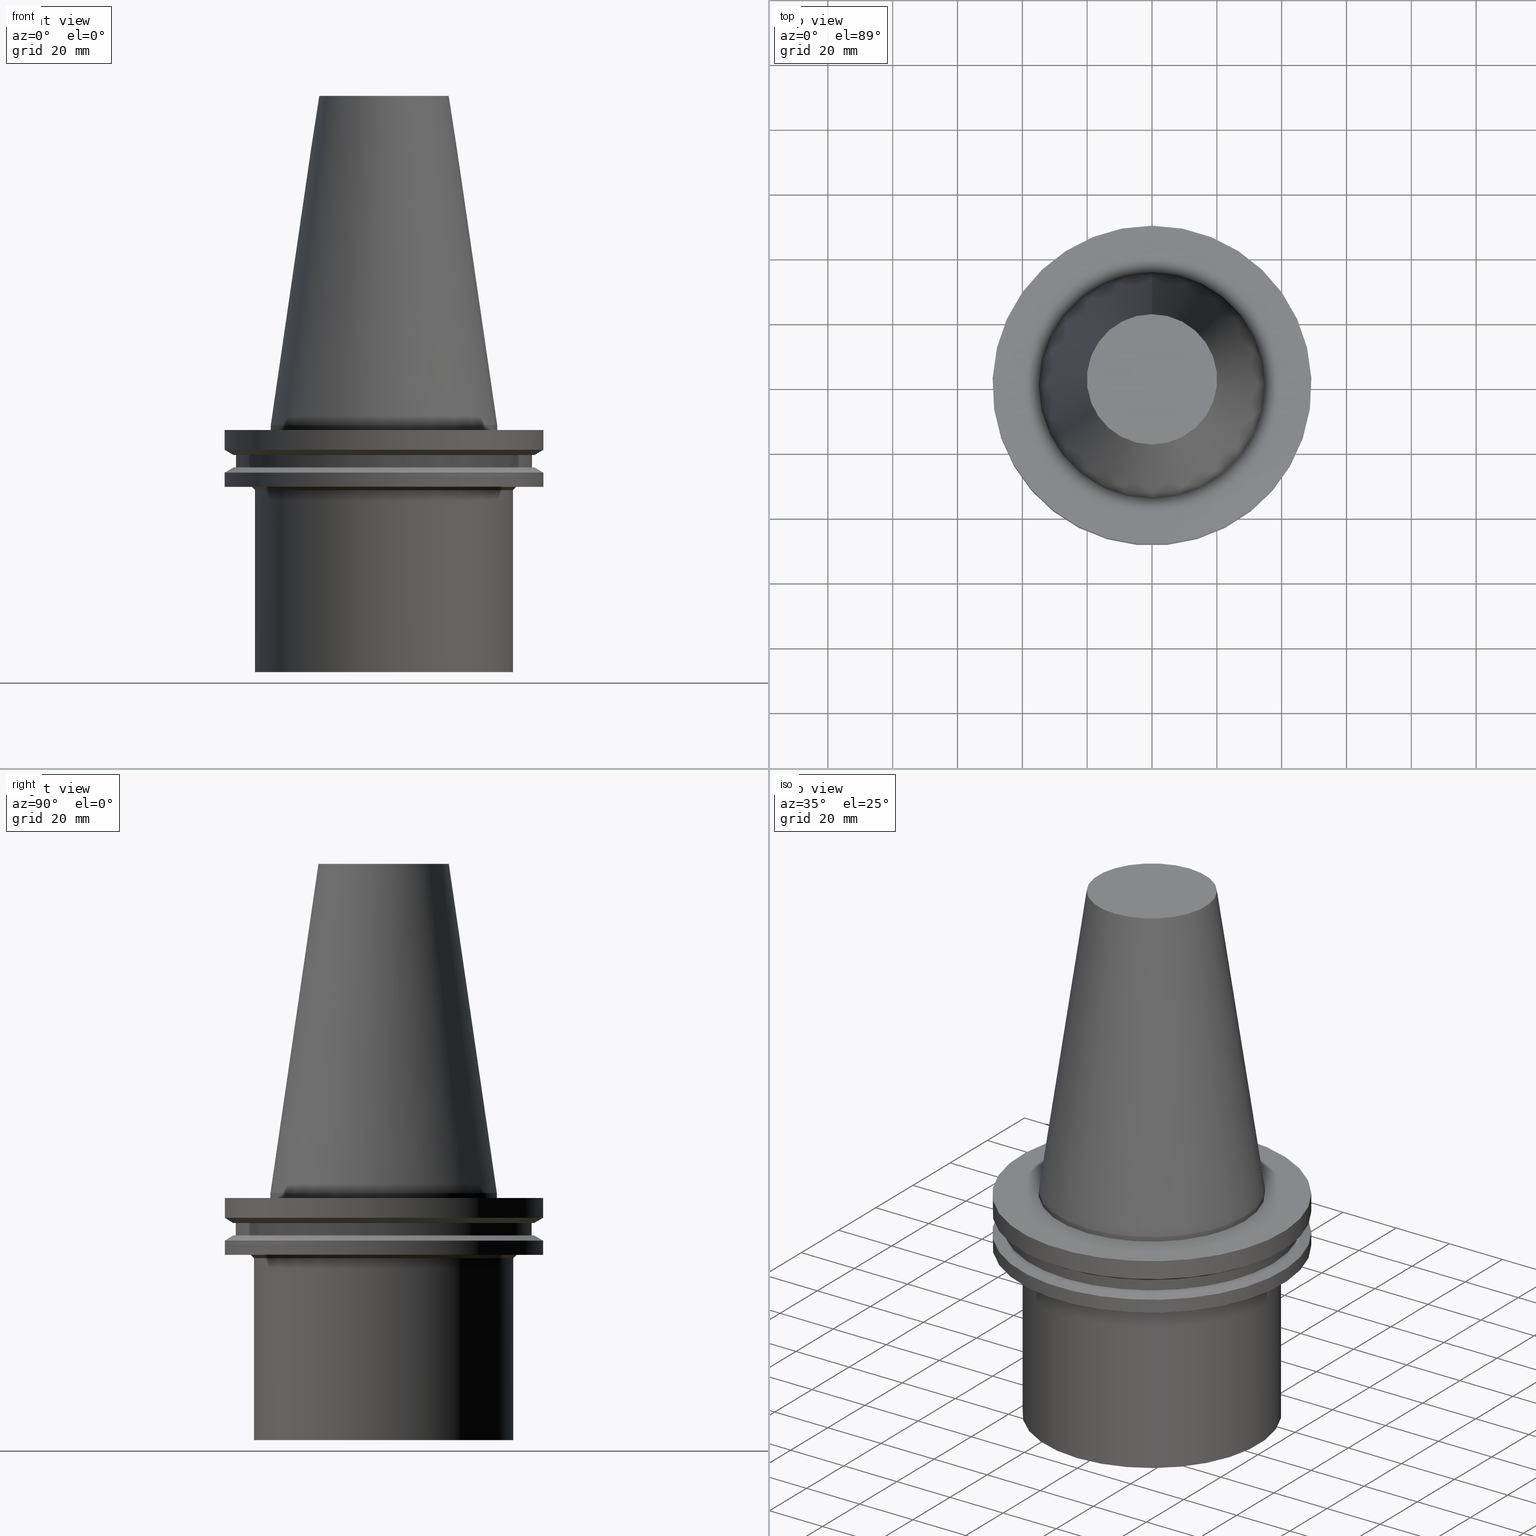
[diagram: canonical four-view strip — front | top / right | iso, engineering-drawing reading convention]
A machine part, canonical four-view strip (front | top / right | iso — engineering-drawing reading convention). The complete STEP part file that produces these views, byte-faithful:
ISO-10303-21;
HEADER;
FILE_DESCRIPTION((''),'1');
FILE_NAME('V:/90_\X2\53D65F9730C730FC30BF\X0\/00_\X2\6DE18DEF30C730FC30BF\X0\/ALL/BCV-BKUS\X2\FF76FF80FF9BFF78FF9E752852A05DE556F3\X0\201801/BCV50Y-CAPTO/BCV50Y-C8-3.stp','2018-02-01T01:59:57',(''),(''),'Spatial Interop R21 SP3','Kubotek KeyCreator 2011 V10.0.2 (22737)',' ');
FILE_SCHEMA(('automotive_design'));
ENDSEC;
DATA;
#1=MECHANICAL_DESIGN_GEOMETRIC_PRESENTATION_REPRESENTATION(' ',(#10,#11,#12,#13,#14,#15,#16,#17,#18,#19,#20,#21,#22,#23,#24,#25,#26,#27,#28,#29,#30,#31,#32,#33,#34,#35,#36,#37,#38,#39),#6);
#2=PRODUCT_DEFINITION_CONTEXT('',#40,'design');
#3=APPLICATION_PROTOCOL_DEFINITION('INTERNATIONAL STANDARD','automotive_design',1994,#40);
#4=PRODUCT_CATEGORY_RELATIONSHIP('NONE','NONE',#41,#42);
#5=SHAPE_DEFINITION_REPRESENTATION(#43,#44);
#6= (GEOMETRIC_REPRESENTATION_CONTEXT(3)GLOBAL_UNCERTAINTY_ASSIGNED_CONTEXT((#47))GLOBAL_UNIT_ASSIGNED_CONTEXT((#49,#50,#51))REPRESENTATION_CONTEXT('NONE','WORKSPACE'));
#10=STYLED_ITEM('',(#53),#54);
#11=STYLED_ITEM('',(#55,#56),#57);
#12=STYLED_ITEM('',(#58,#59),#60);
#13=STYLED_ITEM('',(#61,#62),#63);
#14=STYLED_ITEM('',(#64,#65),#66);
#15=STYLED_ITEM('',(#67,#68),#69);
#16=STYLED_ITEM('',(#70),#71);
#17=STYLED_ITEM('',(#72,#73),#74);
#18=STYLED_ITEM('',(#75),#76);
#19=STYLED_ITEM('',(#77),#78);
#20=STYLED_ITEM('',(#79),#80);
#21=STYLED_ITEM('',(#81),#82);
#22=STYLED_ITEM('',(#83,#84),#85);
#23=STYLED_ITEM('',(#86,#87),#88);
#24=STYLED_ITEM('',(#89),#90);
#25=STYLED_ITEM('',(#91,#92),#93);
#26=STYLED_ITEM('',(#94,#95),#96);
#27=STYLED_ITEM('',(#97),#98);
#28=STYLED_ITEM('',(#99),#100);
#29=STYLED_ITEM('',(#101),#102);
#30=STYLED_ITEM('',(#103),#104);
#31=STYLED_ITEM('',(#105,#106),#107);
#32=STYLED_ITEM('',(#108,#109),#110);
#33=STYLED_ITEM('',(#111),#112);
#34=STYLED_ITEM('',(#113),#114);
#35=STYLED_ITEM('',(#115,#116),#117);
#36=STYLED_ITEM('',(#118,#119),#120);
#37=STYLED_ITEM('',(#121,#122),#123);
#38=STYLED_ITEM('',(#124,#125),#126);
#39=STYLED_ITEM('',(#127),#128);
#40=APPLICATION_CONTEXT(' ');
#41=PRODUCT_CATEGORY('part','NONE');
#42=PRODUCT_RELATED_PRODUCT_CATEGORY('detail',' ',(#129));
#43=PRODUCT_DEFINITION_SHAPE('NONE','NONE',#130);
#44=ADVANCED_BREP_SHAPE_REPRESENTATION('Unnamed[1]',(#57,#131),#6);
#47=UNCERTAINTY_MEASURE_WITH_UNIT(LENGTH_MEASURE(1.0E-006),#49,'','');
#49= (CONVERSION_BASED_UNIT('MILLIMETRE',#134)LENGTH_UNIT()NAMED_UNIT(#137));
#50= (NAMED_UNIT(#139)PLANE_ANGLE_UNIT()SI_UNIT($,.RADIAN.));
#51= (NAMED_UNIT(#139)SOLID_ANGLE_UNIT()SI_UNIT($,.STERADIAN.));
#53=PRESENTATION_STYLE_ASSIGNMENT((#145));
#54=EDGE_CURVE('Unnamed[1]',#146,#146,#147,.T.);
#55=PRESENTATION_STYLE_ASSIGNMENT((#148));
#56=PRESENTATION_STYLE_ASSIGNMENT((#149));
#57=MANIFOLD_SOLID_BREP('Unnamed[1]',#150);
#58=PRESENTATION_STYLE_ASSIGNMENT((#151));
#59=PRESENTATION_STYLE_ASSIGNMENT((#152));
#60=ADVANCED_FACE('Unnamed[1]',(#153,#154),#155,.T.);
#61=PRESENTATION_STYLE_ASSIGNMENT((#156));
#62=PRESENTATION_STYLE_ASSIGNMENT((#157));
#63=ADVANCED_FACE('Unnamed[1]',(#158),#159,.T.);
#64=PRESENTATION_STYLE_ASSIGNMENT((#160));
#65=PRESENTATION_STYLE_ASSIGNMENT((#161));
#66=ADVANCED_FACE('Unnamed[1]',(#162,#163),#164,.T.);
#67=PRESENTATION_STYLE_ASSIGNMENT((#165));
#68=PRESENTATION_STYLE_ASSIGNMENT((#166));
#69=ADVANCED_FACE('Unnamed[1]',(#167,#168),#169,.T.);
#70=PRESENTATION_STYLE_ASSIGNMENT((#170));
#71=EDGE_CURVE('Unnamed[1]',#171,#171,#172,.T.);
#72=PRESENTATION_STYLE_ASSIGNMENT((#173));
#73=PRESENTATION_STYLE_ASSIGNMENT((#174));
#74=ADVANCED_FACE('Unnamed[1]',(#175,#176),#177,.T.);
#75=PRESENTATION_STYLE_ASSIGNMENT((#178));
#76=EDGE_CURVE('Unnamed[1]',#179,#179,#180,.T.);
#77=PRESENTATION_STYLE_ASSIGNMENT((#181));
#78=EDGE_CURVE('Unnamed[1]',#182,#182,#183,.T.);
#79=PRESENTATION_STYLE_ASSIGNMENT((#184));
#80=EDGE_CURVE('Unnamed[1]',#185,#185,#186,.T.);
#81=PRESENTATION_STYLE_ASSIGNMENT((#187));
#82=EDGE_CURVE('Unnamed[1]',#188,#188,#189,.T.);
#83=PRESENTATION_STYLE_ASSIGNMENT((#190));
#84=PRESENTATION_STYLE_ASSIGNMENT((#191));
#85=ADVANCED_FACE('Unnamed[1]',(#192,#193),#194,.T.);
#86=PRESENTATION_STYLE_ASSIGNMENT((#195));
#87=PRESENTATION_STYLE_ASSIGNMENT((#196));
#88=ADVANCED_FACE('Unnamed[1]',(#197,#198),#199,.T.);
#89=PRESENTATION_STYLE_ASSIGNMENT((#200));
#90=EDGE_CURVE('Unnamed[1]',#201,#201,#202,.T.);
#91=PRESENTATION_STYLE_ASSIGNMENT((#203));
#92=PRESENTATION_STYLE_ASSIGNMENT((#204));
#93=ADVANCED_FACE('Unnamed[1]',(#205,#206),#207,.T.);
#94=PRESENTATION_STYLE_ASSIGNMENT((#208));
#95=PRESENTATION_STYLE_ASSIGNMENT((#209));
#96=ADVANCED_FACE('Unnamed[1]',(#210,#211),#212,.T.);
#97=PRESENTATION_STYLE_ASSIGNMENT((#213));
#98=EDGE_CURVE('Unnamed[1]',#214,#214,#215,.T.);
#99=PRESENTATION_STYLE_ASSIGNMENT((#216));
#100=EDGE_CURVE('Unnamed[1]',#217,#217,#218,.T.);
#101=PRESENTATION_STYLE_ASSIGNMENT((#219));
#102=EDGE_CURVE('Unnamed[1]',#220,#220,#221,.T.);
#103=PRESENTATION_STYLE_ASSIGNMENT((#222));
#104=EDGE_CURVE('Unnamed[1]',#223,#223,#224,.T.);
#105=PRESENTATION_STYLE_ASSIGNMENT((#225));
#106=PRESENTATION_STYLE_ASSIGNMENT((#226));
#107=ADVANCED_FACE('Unnamed[1]',(#227,#228),#229,.T.);
#108=PRESENTATION_STYLE_ASSIGNMENT((#230));
#109=PRESENTATION_STYLE_ASSIGNMENT((#231));
#110=ADVANCED_FACE('Unnamed[1]',(#232,#233),#234,.T.);
#111=PRESENTATION_STYLE_ASSIGNMENT((#235));
#112=EDGE_CURVE('Unnamed[1]',#236,#236,#237,.T.);
#113=PRESENTATION_STYLE_ASSIGNMENT((#238));
#114=EDGE_CURVE('Unnamed[1]',#239,#239,#240,.T.);
#115=PRESENTATION_STYLE_ASSIGNMENT((#241));
#116=PRESENTATION_STYLE_ASSIGNMENT((#242));
#117=ADVANCED_FACE('Unnamed[1]',(#243,#244),#245,.T.);
#118=PRESENTATION_STYLE_ASSIGNMENT((#246));
#119=PRESENTATION_STYLE_ASSIGNMENT((#247));
#120=ADVANCED_FACE('Unnamed[1]',(#248),#249,.T.);
#121=PRESENTATION_STYLE_ASSIGNMENT((#250));
#122=PRESENTATION_STYLE_ASSIGNMENT((#251));
#123=ADVANCED_FACE('Unnamed[1]',(#252,#253),#254,.T.);
#124=PRESENTATION_STYLE_ASSIGNMENT((#255));
#125=PRESENTATION_STYLE_ASSIGNMENT((#256));
#126=ADVANCED_FACE('Unnamed[1]',(#257,#258),#259,.T.);
#127=PRESENTATION_STYLE_ASSIGNMENT((#260));
#128=EDGE_CURVE('Unnamed[1]',#261,#261,#262,.T.);
#129=PRODUCT('Unnamed[1]','Unnamed[1]','PART-Unnamed[1]-DESC',(#263));
#130=PRODUCT_DEFINITION('NONE','NONE',#264,#2);
#131=AXIS2_PLACEMENT_3D('',#265,#266,#267);
#134=LENGTH_MEASURE_WITH_UNIT(LENGTH_MEASURE(1.0),#268);
#137=DIMENSIONAL_EXPONENTS(1.0,0.0,0.0,0.0,0.0,0.0,0.0);
#139=DIMENSIONAL_EXPONENTS(0.0,0.0,0.0,0.0,0.0,0.0,0.0);
#145=CURVE_STYLE('',#269,POSITIVE_LENGTH_MEASURE(1000.0),#270);
#146=VERTEX_POINT('',#271);
#147=CIRCLE('',#272,49.2124999999999);
#148=SURFACE_STYLE_USAGE(.BOTH.,#273);
#149=CURVE_STYLE('',#274,POSITIVE_LENGTH_MEASURE(1000.0),#275);
#150=CLOSED_SHELL('',(#120,#117,#96,#107,#85,#69,#66,#60,#110,#126,#88,#93,#74,#123,#63));
#151=SURFACE_STYLE_USAGE(.BOTH.,#276);
#152=CURVE_STYLE('',#277,POSITIVE_LENGTH_MEASURE(1000.0),#278);
#153=FACE_BOUND('',#279,.T.);
#154=FACE_BOUND('',#280,.T.);
#155=CYLINDRICAL_SURFACE('',#281,45.6449999999999);
#156=SURFACE_STYLE_USAGE(.BOTH.,#282);
#157=CURVE_STYLE('',#283,POSITIVE_LENGTH_MEASURE(1000.0),#284);
#158=FACE_OUTER_BOUND('',#285,.T.);
#159=PLANE('',#286);
#160=SURFACE_STYLE_USAGE(.BOTH.,#287);
#161=CURVE_STYLE('',#288,POSITIVE_LENGTH_MEASURE(1000.0),#289);
#162=FACE_BOUND('',#290,.T.);
#163=FACE_OUTER_BOUND('',#291,.T.);
#164=PLANE('',#292);
#165=SURFACE_STYLE_USAGE(.BOTH.,#293);
#166=CURVE_STYLE('',#294,POSITIVE_LENGTH_MEASURE(1000.0),#295);
#167=FACE_BOUND('',#296,.T.);
#168=FACE_BOUND('',#297,.T.);
#169=CONICAL_SURFACE('',#298,47.822529226926,1.04719755119663);
#170=CURVE_STYLE('',#299,POSITIVE_LENGTH_MEASURE(1000.0),#300);
#171=VERTEX_POINT('',#301);
#172=CIRCLE('',#302,46.432558453852);
#173=SURFACE_STYLE_USAGE(.BOTH.,#303);
#174=CURVE_STYLE('',#304,POSITIVE_LENGTH_MEASURE(1000.0),#305);
#175=FACE_BOUND('',#306,.T.);
#176=FACE_BOUND('',#307,.T.);
#177=CONICAL_SURFACE('',#308,40.5,0.785398163397449);
#178=CURVE_STYLE('',#309,POSITIVE_LENGTH_MEASURE(1000.0),#310);
#179=VERTEX_POINT('',#311);
#180=CIRCLE('',#312,41.0);
#181=CURVE_STYLE('',#313,POSITIVE_LENGTH_MEASURE(1000.0),#314);
#182=VERTEX_POINT('',#315);
#183=CIRCLE('',#316,40.0);
#184=CURVE_STYLE('',#317,POSITIVE_LENGTH_MEASURE(1000.0),#318);
#185=VERTEX_POINT('',#319);
#186=CIRCLE('',#320,40.0);
#187=CURVE_STYLE('',#321,POSITIVE_LENGTH_MEASURE(1000.0),#322);
#188=VERTEX_POINT('',#323);
#189=CIRCLE('',#324,20.1083333333333);
#190=SURFACE_STYLE_USAGE(.BOTH.,#325);
#191=CURVE_STYLE('',#326,POSITIVE_LENGTH_MEASURE(1000.0),#327);
#192=FACE_BOUND('',#328,.T.);
#193=FACE_BOUND('',#329,.T.);
#194=CYLINDRICAL_SURFACE('',#330,49.2125);
#195=SURFACE_STYLE_USAGE(.BOTH.,#331);
#196=CURVE_STYLE('',#332,POSITIVE_LENGTH_MEASURE(1000.0),#333);
#197=FACE_BOUND('',#334,.T.);
#198=FACE_BOUND('',#335,.T.);
#199=CYLINDRICAL_SURFACE('',#336,49.2124999999999);
#200=CURVE_STYLE('',#337,POSITIVE_LENGTH_MEASURE(1000.0),#338);
#201=VERTEX_POINT('',#339);
#202=CIRCLE('',#340,34.925);
#203=SURFACE_STYLE_USAGE(.BOTH.,#341);
#204=CURVE_STYLE('',#342,POSITIVE_LENGTH_MEASURE(1000.0),#343);
#205=FACE_BOUND('',#344,.T.);
#206=FACE_OUTER_BOUND('',#345,.T.);
#207=PLANE('',#346);
#208=SURFACE_STYLE_USAGE(.BOTH.,#347);
#209=CURVE_STYLE('',#348,POSITIVE_LENGTH_MEASURE(1000.0),#349);
#210=FACE_BOUND('',#350,.T.);
#211=FACE_BOUND('',#351,.T.);
#212=CYLINDRICAL_SURFACE('',#352,34.925);
#213=CURVE_STYLE('',#353,POSITIVE_LENGTH_MEASURE(1000.0),#354);
#214=VERTEX_POINT('',#355);
#215=CIRCLE('',#356,34.925);
#216=CURVE_STYLE('',#357,POSITIVE_LENGTH_MEASURE(1000.0),#358);
#217=VERTEX_POINT('',#359);
#218=CIRCLE('',#360,46.4325584538518);
#219=CURVE_STYLE('',#361,POSITIVE_LENGTH_MEASURE(1000.0),#362);
#220=VERTEX_POINT('',#363);
#221=CIRCLE('',#364,49.2124999999999);
#222=CURVE_STYLE('',#365,POSITIVE_LENGTH_MEASURE(1000.0),#366);
#223=VERTEX_POINT('',#367);
#224=CIRCLE('',#368,49.2124999999999);
#225=SURFACE_STYLE_USAGE(.BOTH.,#369);
#226=CURVE_STYLE('',#370,POSITIVE_LENGTH_MEASURE(1000.0),#371);
#227=FACE_OUTER_BOUND('',#372,.T.);
#228=FACE_BOUND('',#373,.T.);
#229=PLANE('',#374);
#230=SURFACE_STYLE_USAGE(.BOTH.,#375);
#231=CURVE_STYLE('',#376,POSITIVE_LENGTH_MEASURE(1000.0),#377);
#232=FACE_OUTER_BOUND('',#378,.T.);
#233=FACE_BOUND('',#379,.T.);
#234=PLANE('',#380);
#235=CURVE_STYLE('',#381,POSITIVE_LENGTH_MEASURE(1000.0),#382);
#236=VERTEX_POINT('',#383);
#237=CIRCLE('',#384,45.6449999999999);
#238=CURVE_STYLE('',#385,POSITIVE_LENGTH_MEASURE(1000.0),#386);
#239=VERTEX_POINT('',#387);
#240=CIRCLE('',#388,49.2125);
#241=SURFACE_STYLE_USAGE(.BOTH.,#389);
#242=CURVE_STYLE('',#390,POSITIVE_LENGTH_MEASURE(1000.0),#391);
#243=FACE_BOUND('',#392,.T.);
#244=FACE_BOUND('',#393,.T.);
#245=CONICAL_SURFACE('',#394,27.5166666666666,0.144812498238938);
#246=SURFACE_STYLE_USAGE(.BOTH.,#395);
#247=CURVE_STYLE('',#396,POSITIVE_LENGTH_MEASURE(1000.0),#397);
#248=FACE_OUTER_BOUND('',#398,.T.);
#249=PLANE('',#399);
#250=SURFACE_STYLE_USAGE(.BOTH.,#400);
#251=CURVE_STYLE('',#401,POSITIVE_LENGTH_MEASURE(1000.0),#402);
#252=FACE_BOUND('',#403,.T.);
#253=FACE_BOUND('',#404,.T.);
#254=CYLINDRICAL_SURFACE('',#405,40.0);
#255=SURFACE_STYLE_USAGE(.BOTH.,#406);
#256=CURVE_STYLE('',#407,POSITIVE_LENGTH_MEASURE(1000.0),#408);
#257=FACE_BOUND('',#409,.T.);
#258=FACE_BOUND('',#410,.T.);
#259=CONICAL_SURFACE('',#411,47.8225292269259,1.04719755119659);
#260=CURVE_STYLE('',#412,POSITIVE_LENGTH_MEASURE(1000.0),#413);
#261=VERTEX_POINT('',#414);
#262=CIRCLE('',#415,45.6449999999999);
#263=PRODUCT_CONTEXT('',#40,'mechanical');
#264=PRODUCT_DEFINITION_FORMATION_WITH_SPECIFIED_SOURCE(' ','NONE',#129,.NOT_KNOWN.);
#265=CARTESIAN_POINT('',(0.0,0.0,0.0));
#266=DIRECTION('',(0.0,0.0,1.0));
#267=DIRECTION('',(1.0,0.0,0.0));
#268= (NAMED_UNIT(#137)LENGTH_UNIT()SI_UNIT(.MILLI.,.METRE.));
#269=DRAUGHTING_PRE_DEFINED_CURVE_FONT('continuous');
#270=COLOUR_RGB('',0.0,1.0,0.0);
#271=CARTESIAN_POINT('',(1.16647607618786E-015,49.2124999999999,-19.0500000000001));
#272=AXIS2_PLACEMENT_3D('',#417,#418,#419);
#273=SURFACE_SIDE_STYLE('',(#420));
#274=DRAUGHTING_PRE_DEFINED_CURVE_FONT('continuous');
#275=COLOUR_RGB('',0.0,1.0,0.0);
#276=SURFACE_SIDE_STYLE('',(#421));
#277=DRAUGHTING_PRE_DEFINED_CURVE_FONT('continuous');
#278=COLOUR_RGB('',0.0,1.0,0.0);
#279=EDGE_LOOP('',(#422));
#280=EDGE_LOOP('',(#423));
#281=AXIS2_PLACEMENT_3D('',#424,#425,#426);
#282=SURFACE_SIDE_STYLE('',(#427));
#283=DRAUGHTING_PRE_DEFINED_CURVE_FONT('continuous');
#284=COLOUR_RGB('',0.0,1.0,0.0);
#285=EDGE_LOOP('',(#428));
#286=AXIS2_PLACEMENT_3D('',#429,#430,#431);
#287=SURFACE_SIDE_STYLE('',(#432));
#288=DRAUGHTING_PRE_DEFINED_CURVE_FONT('continuous');
#289=COLOUR_RGB('',0.0,1.0,0.0);
#290=EDGE_LOOP('',(#433));
#291=EDGE_LOOP('',(#434));
#292=AXIS2_PLACEMENT_3D('',#435,#436,#437);
#293=SURFACE_SIDE_STYLE('',(#438));
#294=DRAUGHTING_PRE_DEFINED_CURVE_FONT('continuous');
#295=COLOUR_RGB('',0.0,1.0,0.0);
#296=EDGE_LOOP('',(#439));
#297=EDGE_LOOP('',(#440));
#298=AXIS2_PLACEMENT_3D('',#441,#442,#443);
#299=DRAUGHTING_PRE_DEFINED_CURVE_FONT('continuous');
#300=COLOUR_RGB('',0.0,1.0,0.0);
#301=CARTESIAN_POINT('',(5.63337527607778E-016,46.432558453852,-9.19999999999993));
#302=AXIS2_PLACEMENT_3D('',#444,#445,#446);
#303=SURFACE_SIDE_STYLE('',(#447));
#304=DRAUGHTING_PRE_DEFINED_CURVE_FONT('continuous');
#305=COLOUR_RGB('',0.0,1.0,0.0);
#306=EDGE_LOOP('',(#448));
#307=EDGE_LOOP('',(#449));
#308=AXIS2_PLACEMENT_3D('',#450,#451,#452);
#309=DRAUGHTING_PRE_DEFINED_CURVE_FONT('continuous');
#310=COLOUR_RGB('',0.0,1.0,0.0);
#311=CARTESIAN_POINT('',(1.16647607618786E-015,41.0,-19.0500000000001));
#312=AXIS2_PLACEMENT_3D('',#453,#454,#455);
#313=DRAUGHTING_PRE_DEFINED_CURVE_FONT('continuous');
#314=COLOUR_RGB('',0.0,1.0,0.0);
#315=CARTESIAN_POINT('',(1.22770841614523E-015,40.0,-20.0500000000001));
#316=AXIS2_PLACEMENT_3D('',#456,#457,#458);
#317=DRAUGHTING_PRE_DEFINED_CURVE_FONT('continuous');
#318=COLOUR_RGB('',0.0,1.0,0.0);
#319=CARTESIAN_POINT('',(4.66590430475142E-015,40.0,-76.2));
#320=AXIS2_PLACEMENT_3D('',#459,#460,#461);
#321=DRAUGHTING_PRE_DEFINED_CURVE_FONT('continuous');
#322=COLOUR_RGB('',0.0,1.0,0.0);
#323=CARTESIAN_POINT('',(-6.22120573966855E-015,20.1083333333332,101.6));
#324=AXIS2_PLACEMENT_3D('',#462,#463,#464);
#325=SURFACE_SIDE_STYLE('',(#465));
#326=DRAUGHTING_PRE_DEFINED_CURVE_FONT('continuous');
#327=COLOUR_RGB('',0.0,1.0,0.0);
#328=EDGE_LOOP('',(#466));
#329=EDGE_LOOP('',(#467));
#330=AXIS2_PLACEMENT_3D('',#468,#469,#470);
#331=SURFACE_SIDE_STYLE('',(#471));
#332=DRAUGHTING_PRE_DEFINED_CURVE_FONT('continuous');
#333=COLOUR_RGB('',0.0,1.0,0.0);
#334=EDGE_LOOP('',(#472));
#335=EDGE_LOOP('',(#473));
#336=AXIS2_PLACEMENT_3D('',#474,#475,#476);
#337=DRAUGHTING_PRE_DEFINED_CURVE_FONT('continuous');
#338=COLOUR_RGB('',0.0,1.0,0.0);
#339=CARTESIAN_POINT('',(9.18485099360511E-017,34.925,-1.5));
#340=AXIS2_PLACEMENT_3D('',#477,#478,#479);
#341=SURFACE_SIDE_STYLE('',(#480));
#342=DRAUGHTING_PRE_DEFINED_CURVE_FONT('continuous');
#343=COLOUR_RGB('',0.0,1.0,0.0);
#344=EDGE_LOOP('',(#481));
#345=EDGE_LOOP('',(#482));
#346=AXIS2_PLACEMENT_3D('',#483,#484,#485);
#347=SURFACE_SIDE_STYLE('',(#486));
#348=DRAUGHTING_PRE_DEFINED_CURVE_FONT('continuous');
#349=COLOUR_RGB('',0.0,1.0,0.0);
#350=EDGE_LOOP('',(#487));
#351=EDGE_LOOP('',(#488));
#352=AXIS2_PLACEMENT_3D('',#489,#490,#491);
#353=DRAUGHTING_PRE_DEFINED_CURVE_FONT('continuous');
#354=COLOUR_RGB('',0.0,1.0,0.0);
#355=CARTESIAN_POINT('',(4.82986938111671E-029,34.925,-7.9153078510529E-013));
#356=AXIS2_PLACEMENT_3D('',#492,#493,#494);
#357=DRAUGHTING_PRE_DEFINED_CURVE_FONT('continuous');
#358=COLOUR_RGB('',0.0,1.0,0.0);
#359=CARTESIAN_POINT('',(7.98469713044071E-016,46.4325584538519,-13.04));
#360=AXIS2_PLACEMENT_3D('',#495,#496,#497);
#361=DRAUGHTING_PRE_DEFINED_CURVE_FONT('continuous');
#362=COLOUR_RGB('',0.0,1.0,0.0);
#363=CARTESIAN_POINT('',(8.96747618675648E-016,49.2124999999999,-14.645));
#364=AXIS2_PLACEMENT_3D('',#498,#499,#500);
#365=DRAUGHTING_PRE_DEFINED_CURVE_FONT('continuous');
#366=COLOUR_RGB('',0.0,1.0,0.0);
#367=CARTESIAN_POINT('',(9.18485099360509E-017,49.2124999999999,-1.49999999999999));
#368=AXIS2_PLACEMENT_3D('',#501,#502,#503);
#369=SURFACE_SIDE_STYLE('',(#504));
#370=DRAUGHTING_PRE_DEFINED_CURVE_FONT('continuous');
#371=COLOUR_RGB('',0.0,1.0,0.0);
#372=EDGE_LOOP('',(#505));
#373=EDGE_LOOP('',(#506));
#374=AXIS2_PLACEMENT_3D('',#507,#508,#509);
#375=SURFACE_SIDE_STYLE('',(#510));
#376=DRAUGHTING_PRE_DEFINED_CURVE_FONT('continuous');
#377=COLOUR_RGB('',0.0,1.0,0.0);
#378=EDGE_LOOP('',(#511));
#379=EDGE_LOOP('',(#512));
#380=AXIS2_PLACEMENT_3D('',#513,#514,#515);
#381=DRAUGHTING_PRE_DEFINED_CURVE_FONT('continuous');
#382=COLOUR_RGB('',0.0,1.0,0.0);
#383=CARTESIAN_POINT('',(5.63337527607778E-016,45.6449999999999,-9.19999999999993));
#384=AXIS2_PLACEMENT_3D('',#516,#517,#518);
#385=DRAUGHTING_PRE_DEFINED_CURVE_FONT('continuous');
#386=COLOUR_RGB('',0.0,1.0,0.0);
#387=CARTESIAN_POINT('',(4.65059621976208E-016,49.2125,-7.59500000000002));
#388=AXIS2_PLACEMENT_3D('',#519,#520,#521);
#389=SURFACE_SIDE_STYLE('',(#522));
#390=DRAUGHTING_PRE_DEFINED_CURVE_FONT('continuous');
#391=COLOUR_RGB('',0.0,1.0,0.0);
#392=EDGE_LOOP('',(#523));
#393=EDGE_LOOP('',(#524));
#394=AXIS2_PLACEMENT_3D('',#525,#526,#527);
#395=SURFACE_SIDE_STYLE('',(#528));
#396=DRAUGHTING_PRE_DEFINED_CURVE_FONT('continuous');
#397=COLOUR_RGB('',0.0,1.0,0.0);
#398=EDGE_LOOP('',(#529));
#399=AXIS2_PLACEMENT_3D('',#530,#531,#532);
#400=SURFACE_SIDE_STYLE('',(#533));
#401=DRAUGHTING_PRE_DEFINED_CURVE_FONT('continuous');
#402=COLOUR_RGB('',0.0,1.0,0.0);
#403=EDGE_LOOP('',(#534));
#404=EDGE_LOOP('',(#535));
#405=AXIS2_PLACEMENT_3D('',#536,#537,#538);
#406=SURFACE_SIDE_STYLE('',(#539));
#407=DRAUGHTING_PRE_DEFINED_CURVE_FONT('continuous');
#408=COLOUR_RGB('',0.0,1.0,0.0);
#409=EDGE_LOOP('',(#540));
#410=EDGE_LOOP('',(#541));
#411=AXIS2_PLACEMENT_3D('',#542,#543,#544);
#412=DRAUGHTING_PRE_DEFINED_CURVE_FONT('continuous');
#413=COLOUR_RGB('',0.0,1.0,0.0);
#414=CARTESIAN_POINT('',(7.98469713044071E-016,45.6449999999999,-13.04));
#415=AXIS2_PLACEMENT_3D('',#545,#546,#547);
#417=CARTESIAN_POINT('',(1.16647607618786E-015,2.22257086175561E-014,-19.0500000000001));
#418=DIRECTION('',(6.12323399573677E-017,7.39044660191259E-016,-1.0));
#419=DIRECTION('',(-5.00805866072784E-032,1.0,7.39044660191259E-016));
#420=SURFACE_STYLE_FILL_AREA(#548);
#421=SURFACE_STYLE_FILL_AREA(#549);
#422=ORIENTED_EDGE('',*,*,#128,.F.);
#423=ORIENTED_EDGE('',*,*,#112,.T.);
#424=CARTESIAN_POINT('',(6.80903620325927E-016,1.63650844622392E-014,-11.12));
#425=DIRECTION('',(6.12323399573677E-017,7.39044660191288E-016,-1.0));
#426=DIRECTION('',(-5.00805866072782E-032,1.0,7.39044660191288E-016));
#427=SURFACE_STYLE_FILL_AREA(#550);
#428=ORIENTED_EDGE('',*,*,#80,.T.);
#429=CARTESIAN_POINT('',(4.66590430475142E-015,20.0,-76.2));
#430=DIRECTION('',(6.12323399573677E-017,1.22464679914735E-016,-1.0));
#431=DIRECTION('',(-1.23259516440783E-032,1.0,1.22464679914735E-016));
#432=SURFACE_STYLE_FILL_AREA(#551);
#433=ORIENTED_EDGE('',*,*,#112,.F.);
#434=ORIENTED_EDGE('',*,*,#71,.T.);
#435=CARTESIAN_POINT('',(5.63337527607778E-016,46.0387792269259,-9.19999999999993));
#436=DIRECTION('',(6.12323399573677E-017,1.22464679914735E-016,-1.0));
#437=DIRECTION('',(-1.23259516440783E-032,1.0,1.22464679914735E-016));
#438=SURFACE_STYLE_FILL_AREA(#552);
#439=ORIENTED_EDGE('',*,*,#71,.F.);
#440=ORIENTED_EDGE('',*,*,#114,.T.);
#441=CARTESIAN_POINT('',(5.14198574791995E-016,1.43530353748685E-014,-8.39750000000001));
#442=DIRECTION('',(-6.12323399573677E-017,-7.39044660191276E-016,1.0));
#443=DIRECTION('',(-5.00805866072793E-032,1.0,7.39044660191276E-016));
#444=CARTESIAN_POINT('',(5.6333752760778E-016,1.49461187146719E-014,-9.19999999999996));
#445=DIRECTION('',(6.12323399573677E-017,7.39044660191263E-016,-1.0));
#446=DIRECTION('',(-5.00805866072764E-032,1.0,7.39044660191263E-016));
#447=SURFACE_STYLE_FILL_AREA(#553);
#448=ORIENTED_EDGE('',*,*,#78,.F.);
#449=ORIENTED_EDGE('',*,*,#76,.T.);
#450=CARTESIAN_POINT('',(1.19709224616654E-015,2.25952309476517E-014,-19.5500000000001));
#451=DIRECTION('',(-6.12323399573677E-017,-7.39044660191257E-016,1.0));
#452=DIRECTION('',(-5.00805866072769E-032,1.0,7.39044660191257E-016));
#453=CARTESIAN_POINT('',(1.16647607618786E-015,2.22257086175561E-014,-19.0500000000001));
#454=DIRECTION('',(6.12323399573677E-017,7.39044660191269E-016,-1.0));
#455=DIRECTION('',(-5.00805866072759E-032,1.0,7.39044660191269E-016));
#456=CARTESIAN_POINT('',(1.22770841614523E-015,2.29647532777473E-014,-20.0500000000001));
#457=DIRECTION('',(6.12323399573677E-017,7.39044660191285E-016,-1.0));
#458=DIRECTION('',(-5.00805866072802E-032,1.0,7.39044660191285E-016));
#459=CARTESIAN_POINT('',(4.66590430475142E-015,6.44621109474873E-014,-76.2));
#460=DIRECTION('',(6.12323399573677E-017,7.39044660191286E-016,-1.0));
#461=DIRECTION('',(-5.00805866072802E-032,1.0,7.39044660191286E-016));
#462=CARTESIAN_POINT('',(-6.22120573966855E-015,-6.69400296345211E-014,101.6));
#463=DIRECTION('',(6.12323399573677E-017,7.3904466019126E-016,-1.0));
#464=DIRECTION('',(-5.00805866072768E-032,1.0,7.3904466019126E-016));
#465=SURFACE_STYLE_FILL_AREA(#554);
#466=ORIENTED_EDGE('',*,*,#114,.F.);
#467=ORIENTED_EDGE('',*,*,#104,.T.);
#468=CARTESIAN_POINT('',(2.78454065956132E-016,1.15077134331321E-014,-4.54750000000004));
#469=DIRECTION('',(6.12323399573677E-017,7.39044660191258E-016,-1.0));
#470=DIRECTION('',(-5.00805866072747E-032,1.0,7.39044660191258E-016));
#471=SURFACE_STYLE_FILL_AREA(#555);
#472=ORIENTED_EDGE('',*,*,#54,.F.);
#473=ORIENTED_EDGE('',*,*,#102,.T.);
#474=CARTESIAN_POINT('',(1.03161184743175E-015,2.05979627534847E-014,-16.8475000000001));
#475=DIRECTION('',(6.12323399573677E-017,7.39044660191259E-016,-1.0));
#476=DIRECTION('',(-5.00805866072784E-032,1.0,7.39044660191259E-016));
#477=CARTESIAN_POINT('',(9.18485099360532E-017,9.25547483119916E-015,-1.50000000000003));
#478=DIRECTION('',(6.12323399573677E-017,7.39044660191276E-016,-1.0));
#479=DIRECTION('',(-5.00805866072785E-032,1.0,7.39044660191276E-016));
#480=SURFACE_STYLE_FILL_AREA(#556);
#481=ORIENTED_EDGE('',*,*,#76,.F.);
#482=ORIENTED_EDGE('',*,*,#54,.T.);
#483=CARTESIAN_POINT('',(1.16647607618786E-015,45.10625,-19.0500000000001));
#484=DIRECTION('',(6.12323399573677E-017,1.22464679914735E-016,-1.0));
#485=DIRECTION('',(-1.23259516440783E-032,1.0,1.22464679914735E-016));
#486=SURFACE_STYLE_FILL_AREA(#557);
#487=ORIENTED_EDGE('',*,*,#90,.F.);
#488=ORIENTED_EDGE('',*,*,#98,.T.);
#489=CARTESIAN_POINT('',(4.59242549680518E-017,8.701191336056E-015,-0.750000000000426));
#490=DIRECTION('',(6.12323399573677E-017,7.39044660191275E-016,-1.0));
#491=DIRECTION('',(-5.00805866072784E-032,1.0,7.39044660191276E-016));
#492=CARTESIAN_POINT('',(5.04695054463486E-029,8.14690784091284E-015,-8.24229573481716E-013));
#493=DIRECTION('',(6.12323399573677E-017,7.39044660191275E-016,-1.0));
#494=DIRECTION('',(-5.00805866072784E-032,1.0,7.39044660191275E-016));
#495=CARTESIAN_POINT('',(7.98469713044074E-016,1.77840502098064E-014,-13.04));
#496=DIRECTION('',(6.12323399573677E-017,7.39044660191264E-016,-1.0));
#497=DIRECTION('',(-5.00805866072765E-032,1.0,7.39044660191264E-016));
#498=CARTESIAN_POINT('',(8.9674761867565E-016,1.89702168894134E-014,-14.645));
#499=DIRECTION('',(6.12323399573677E-017,7.39044660191258E-016,-1.0));
#500=DIRECTION('',(-5.00805866072748E-032,1.0,7.39044660191259E-016));
#501=CARTESIAN_POINT('',(9.18485099360532E-017,9.25547483119916E-015,-1.50000000000003));
#502=DIRECTION('',(6.12323399573677E-017,7.39044660191258E-016,-1.0));
#503=DIRECTION('',(-5.00805866072748E-032,1.0,7.39044660191258E-016));
#504=SURFACE_STYLE_FILL_AREA(#558);
#505=ORIENTED_EDGE('',*,*,#104,.F.);
#506=ORIENTED_EDGE('',*,*,#90,.T.);
#507=CARTESIAN_POINT('',(9.1848509936051E-017,42.0687499999999,-1.49999999999999));
#508=DIRECTION('',(-6.12323399573677E-017,-1.22464679914735E-016,1.0));
#509=DIRECTION('',(1.23259516440783E-032,-1.0,-1.22464679914735E-016));
#510=SURFACE_STYLE_FILL_AREA(#559);
#511=ORIENTED_EDGE('',*,*,#100,.F.);
#512=ORIENTED_EDGE('',*,*,#128,.T.);
#513=CARTESIAN_POINT('',(7.98469713044071E-016,46.0387792269259,-13.04));
#514=DIRECTION('',(-6.12323399573677E-017,-1.22464679914735E-016,1.0));
#515=DIRECTION('',(1.23259516440783E-032,-1.0,-1.22464679914735E-016));
#516=CARTESIAN_POINT('',(5.6333752760778E-016,1.49461187146719E-014,-9.19999999999996));
#517=DIRECTION('',(6.12323399573677E-017,7.39044660191288E-016,-1.0));
#518=DIRECTION('',(-5.00805866072782E-032,1.0,7.39044660191288E-016));
#519=CARTESIAN_POINT('',(4.65059621976211E-016,1.3759952035065E-014,-7.59500000000006));
#520=DIRECTION('',(6.12323399573677E-017,7.3904466019129E-016,-1.0));
#521=DIRECTION('',(-5.00805866072747E-032,1.0,7.3904466019129E-016));
#522=SURFACE_STYLE_FILL_AREA(#560);
#523=ORIENTED_EDGE('',*,*,#98,.F.);
#524=ORIENTED_EDGE('',*,*,#82,.T.);
#525=CARTESIAN_POINT('',(-3.11060286983425E-015,-2.93965608968041E-014,50.7999999999996));
#526=DIRECTION('',(6.12323399573677E-017,7.39044660191299E-016,-1.0));
#527=DIRECTION('',(-5.00805866072819E-032,1.0,7.39044660191299E-016));
#528=SURFACE_STYLE_FILL_AREA(#561);
#529=ORIENTED_EDGE('',*,*,#82,.F.);
#530=CARTESIAN_POINT('',(-6.22120573966855E-015,10.0541666666666,101.6));
#531=DIRECTION('',(-6.12323399573677E-017,-1.22464679914735E-016,1.0));
#532=DIRECTION('',(1.23259516440783E-032,-1.0,-1.22464679914735E-016));
#533=SURFACE_STYLE_FILL_AREA(#562);
#534=ORIENTED_EDGE('',*,*,#80,.F.);
#535=ORIENTED_EDGE('',*,*,#78,.T.);
#536=CARTESIAN_POINT('',(2.94680636044832E-015,4.37134321126173E-014,-48.1250000000001));
#537=DIRECTION('',(6.12323399573676E-017,7.39044660191286E-016,-1.0));
#538=DIRECTION('',(-5.0080586607278E-032,1.0,7.39044660191286E-016));
#539=SURFACE_STYLE_FILL_AREA(#563);
#540=ORIENTED_EDGE('',*,*,#102,.F.);
#541=ORIENTED_EDGE('',*,*,#100,.T.);
#542=CARTESIAN_POINT('',(8.47608665859862E-016,1.83771335496099E-014,-13.8425));
#543=DIRECTION('',(6.12323399573677E-017,7.39044660191278E-016,-1.0));
#544=DIRECTION('',(-5.00805866072794E-032,1.0,7.39044660191278E-016));
#545=CARTESIAN_POINT('',(7.98469713044074E-016,1.77840502098064E-014,-13.04));
#546=DIRECTION('',(6.12323399573677E-017,7.39044660191288E-016,-1.0));
#547=DIRECTION('',(-5.00805866072782E-032,1.0,7.39044660191288E-016));
#548=FILL_AREA_STYLE('',(#564));
#549=FILL_AREA_STYLE('',(#565));
#550=FILL_AREA_STYLE('',(#566));
#551=FILL_AREA_STYLE('',(#567));
#552=FILL_AREA_STYLE('',(#568));
#553=FILL_AREA_STYLE('',(#569));
#554=FILL_AREA_STYLE('',(#570));
#555=FILL_AREA_STYLE('',(#571));
#556=FILL_AREA_STYLE('',(#572));
#557=FILL_AREA_STYLE('',(#573));
#558=FILL_AREA_STYLE('',(#574));
#559=FILL_AREA_STYLE('',(#575));
#560=FILL_AREA_STYLE('',(#576));
#561=FILL_AREA_STYLE('',(#577));
#562=FILL_AREA_STYLE('',(#578));
#563=FILL_AREA_STYLE('',(#579));
#564=FILL_AREA_STYLE_COLOUR('',#580);
#565=FILL_AREA_STYLE_COLOUR('',#581);
#566=FILL_AREA_STYLE_COLOUR('',#582);
#567=FILL_AREA_STYLE_COLOUR('',#583);
#568=FILL_AREA_STYLE_COLOUR('',#584);
#569=FILL_AREA_STYLE_COLOUR('',#585);
#570=FILL_AREA_STYLE_COLOUR('',#586);
#571=FILL_AREA_STYLE_COLOUR('',#587);
#572=FILL_AREA_STYLE_COLOUR('',#588);
#573=FILL_AREA_STYLE_COLOUR('',#589);
#574=FILL_AREA_STYLE_COLOUR('',#590);
#575=FILL_AREA_STYLE_COLOUR('',#591);
#576=FILL_AREA_STYLE_COLOUR('',#592);
#577=FILL_AREA_STYLE_COLOUR('',#593);
#578=FILL_AREA_STYLE_COLOUR('',#594);
#579=FILL_AREA_STYLE_COLOUR('',#595);
#580=COLOUR_RGB('',0.0,1.0,0.0);
#581=COLOUR_RGB('',0.0,1.0,0.0);
#582=COLOUR_RGB('',0.0,1.0,0.0);
#583=COLOUR_RGB('',0.0,1.0,0.0);
#584=COLOUR_RGB('',0.0,1.0,0.0);
#585=COLOUR_RGB('',0.0,1.0,0.0);
#586=COLOUR_RGB('',0.0,1.0,0.0);
#587=COLOUR_RGB('',0.0,1.0,0.0);
#588=COLOUR_RGB('',0.0,1.0,0.0);
#589=COLOUR_RGB('',0.0,1.0,0.0);
#590=COLOUR_RGB('',0.0,1.0,0.0);
#591=COLOUR_RGB('',0.0,1.0,0.0);
#592=COLOUR_RGB('',0.0,1.0,0.0);
#593=COLOUR_RGB('',0.0,1.0,0.0);
#594=COLOUR_RGB('',0.0,1.0,0.0);
#595=COLOUR_RGB('',0.0,1.0,0.0);
ENDSEC;
END-ISO-10303-21;
